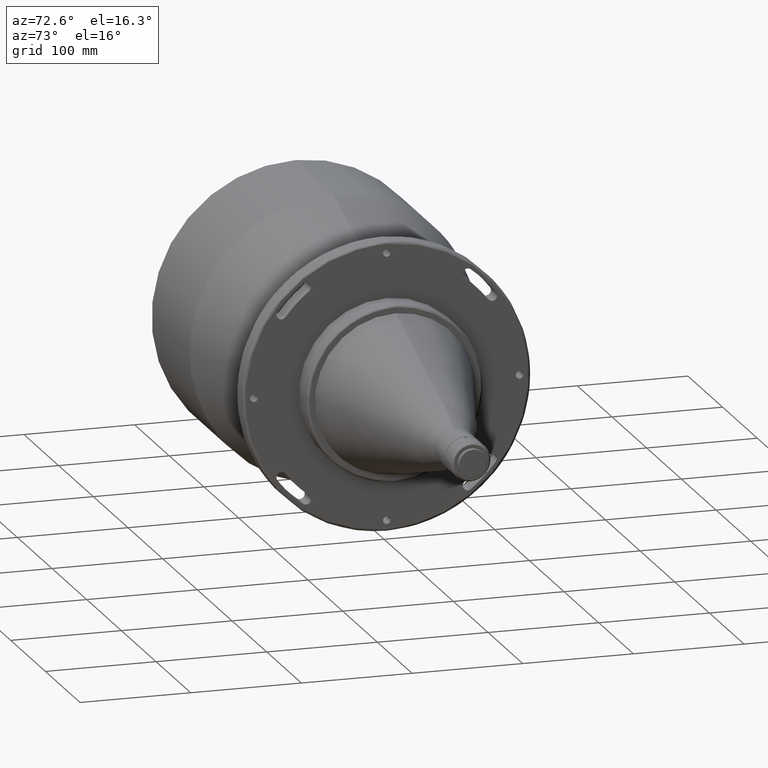
[diagram: clean part render]
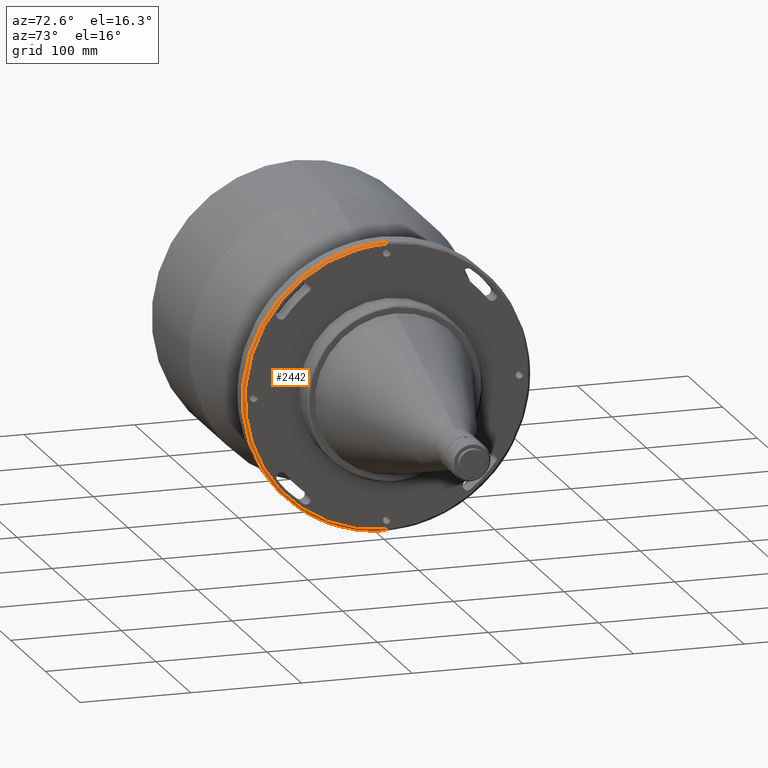
[diagram: same view with one face highlighted and labeled with its STEP entity id]
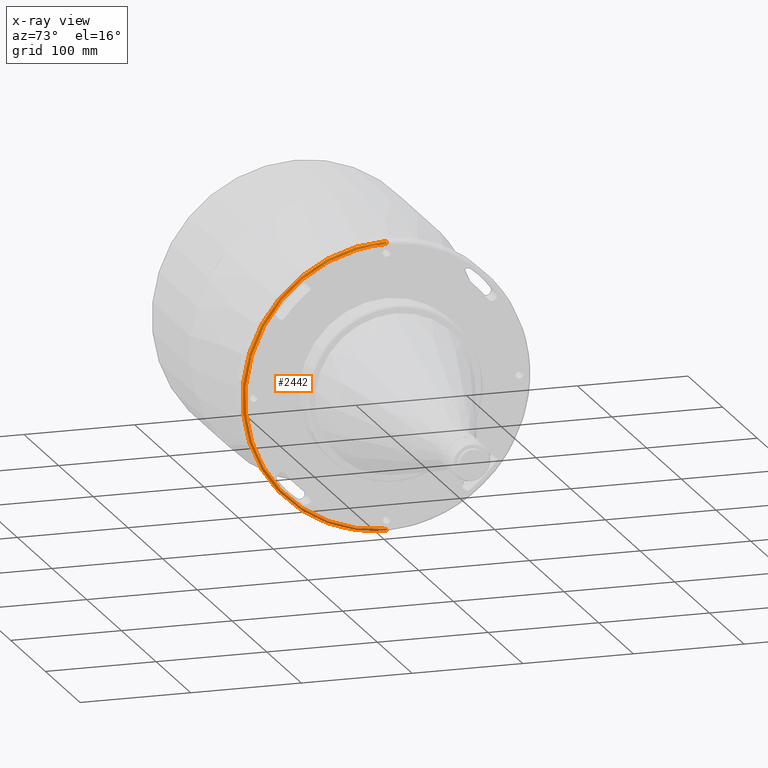
[diagram: x-ray of the same camera — body ghosted, the highlighted face saturated]
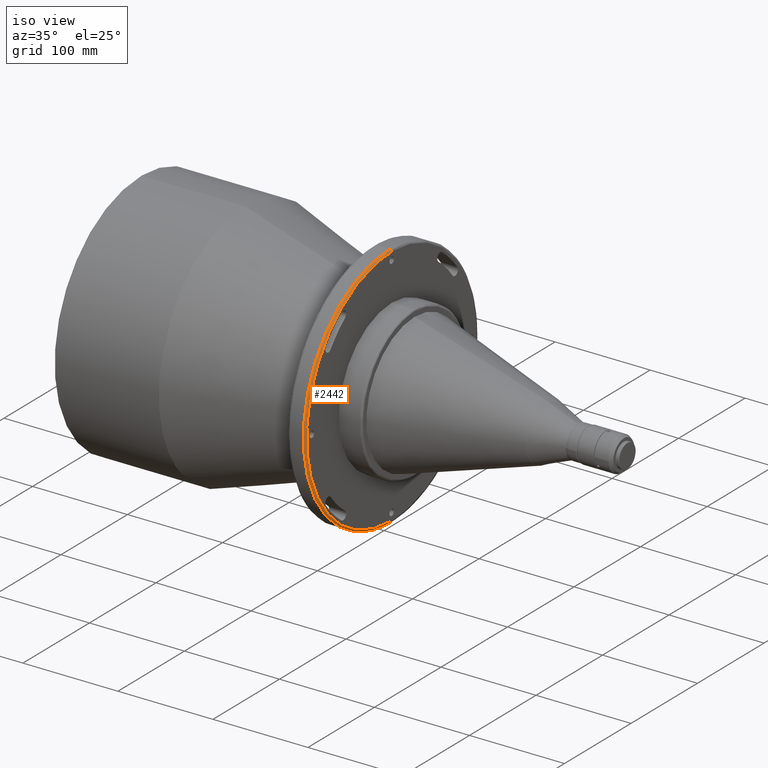
[diagram: same view with one face highlighted and labeled with its STEP entity id]
A machine part, auxiliary view. The second image highlights one B-rep face of the part: STEP entity #2442.
The next image is the same camera in x-ray: the body ghosted, the highlighted face saturated — about 0% of this face is hidden behind the body in this view.
A second angle (iso view) of the same face is appended — the face is thin or edge-on in the first view.
In plain terms, the highlighted face is a freeform B-spline surface patch.
Its self-contained STEP definition (entity closure, byte-faithful):
#2 = VERTEX_POINT ( 'NONE', #2156 ) ;
#80 =( BOUNDED_SURFACE ( )  B_SPLINE_SURFACE ( 3, 3, ( 
 ( #1030, #542, #815, #2557 ),
 ( #2259, #3067, #1330, #1297 ),
 ( #2048, #1284, #552, #563 ),
 ( #3053, #3043, #2029, #2823 ) ),
 .UNSPECIFIED., .F., .F., .T. ) 
 B_SPLINE_SURFACE_WITH_KNOTS ( ( 4, 4 ),
 ( 4, 4 ),
 ( 0.0000000000000000000, 1.000000000000000000 ),
 ( 0.0000000000000000000, 1.000000000000000000 ),
 .UNSPECIFIED. ) 
 GEOMETRIC_REPRESENTATION_ITEM ( )  RATIONAL_B_SPLINE_SURFACE ( (
 ( 1.000000000000000000, 0.3333333333333330400, 0.3333333333333330400, 1.000000000000000000),
 ( 0.7553208711179740800, 0.2517736237059909900, 0.2517736237059909900, 0.7553208711179740800),
 ( 0.7553208711179740800, 0.2517736237059909900, 0.2517736237059909900, 0.7553208711179740800),
 ( 1.000000000000000000, 0.3333333333333330400, 0.3333333333333330400, 1.000000000000000000) ) ) 
 REPRESENTATION_ITEM ( '' )  SURFACE ( )  );
#149 = CARTESIAN_POINT ( 'NONE',  ( 6.099999999999994300, 0.0000000000000000000, 0.0000000000000000000 ) ) ;
#235 = CARTESIAN_POINT ( 'NONE',  ( 6.100000000279341500, -1.167317169573529600E-008, 130.0000000000796400 ) ) ;
#307 = CARTESIAN_POINT ( 'NONE',  ( 6.100000000279341500, -3.999516856048957800E-008, -130.0000000000796400 ) ) ;
#317 = EDGE_CURVE ( 'NONE', #1290, #1848, #2966, .T. ) ;
#436 = EDGE_CURVE ( 'NONE', #1848, #2, #2159, .T. ) ;
#517 =( BOUNDED_CURVE ( )  B_SPLINE_CURVE ( 3, ( #1816, #2595, #843, #2065 ),
 .UNSPECIFIED., .F., .F. ) 
 B_SPLINE_CURVE_WITH_KNOTS ( ( 4, 4 ),
 ( 0.06314145699999929000, 0.9368585429999943800 ),
 .UNSPECIFIED. ) 
 CURVE ( )  GEOMETRIC_REPRESENTATION_ITEM ( )  RATIONAL_B_SPLINE_CURVE ( ( 0.9565783021659939300, 0.7697947703959774300, 0.7697947703959761000, 0.9565783021659899400 ) ) 
 REPRESENTATION_ITEM ( '' )  );
#542 = CARTESIAN_POINT ( 'NONE',  ( 5.900333167000000300, -259.9800166609998700, -129.9900083310000100 ) ) ;
#552 = CARTESIAN_POINT ( 'NONE',  ( 8.226440844999999100, -258.3202150609998900, 129.1601075300000000 ) ) ;
#563 = CARTESIAN_POINT ( 'NONE',  ( 8.226440844999999100, 0.0000000000000000000, 129.1601075300000000 ) ) ;
#650 = ORIENTED_EDGE ( 'NONE', *, *, #1591, .T. ) ;
#815 = CARTESIAN_POINT ( 'NONE',  ( 5.900333167000000300, -259.9800166609998700, 129.9900083310000100 ) ) ;
#843 = CARTESIAN_POINT ( 'NONE',  ( 8.099999999074453800, 0.0000000000000000000, -129.1715728749337000 ) ) ;
#851 = ORIENTED_EDGE ( 'NONE', *, *, #317, .T. ) ;
#988 = ORIENTED_EDGE ( 'NONE', *, *, #436, .T. ) ;
#1030 = CARTESIAN_POINT ( 'NONE',  ( 5.900333167000000300, 0.0000000000000000000, -129.9900083310000100 ) ) ;
#1080 = CARTESIAN_POINT ( 'NONE',  ( 8.100000000191093000, 0.0000000000000000000, -127.9999999753477500 ) ) ;
#1123 = CARTESIAN_POINT ( 'NONE',  ( 7.271572874933713800, 0.0000000000000000000, 129.9999999990745000 ) ) ;
#1135 = DIRECTION ( 'NONE',  ( 4.003208021484939400E-017, 0.0000000000000000000, 1.000000000000000000 ) ) ;
#1178 = CARTESIAN_POINT ( 'NONE',  ( 8.100000000191093000, 0.0000000000000000000, 127.9999999753477200 ) ) ;
#1284 = CARTESIAN_POINT ( 'NONE',  ( 8.226440844999999100, -258.3202150609998900, -129.1601075300000000 ) ) ;
#1290 = VERTEX_POINT ( 'NONE', #1667 ) ;
#1297 = CARTESIAN_POINT ( 'NONE',  ( 7.260107529999999100, 0.0000000000000000000, 130.1264408450000500 ) ) ;
#1330 = CARTESIAN_POINT ( 'NONE',  ( 7.260107530000000000, -260.2528816910000800, 130.1264408450000200 ) ) ;
#1353 = EDGE_LOOP ( 'NONE', ( #988, #1384, #650, #851 ) ) ;
#1384 = ORIENTED_EDGE ( 'NONE', *, *, #2083, .T. ) ;
#1591 = EDGE_CURVE ( 'NONE', #2470, #1290, #517, .T. ) ;
#1667 = CARTESIAN_POINT ( 'NONE',  ( 8.100000000191093000, 0.0000000000000000000, -127.9999999753477500 ) ) ;
#1790 = FACE_OUTER_BOUND ( 'NONE', #1353, .T. ) ;
#1816 = CARTESIAN_POINT ( 'NONE',  ( 6.100000000279341500, -3.999516856048957800E-008, -130.0000000000796400 ) ) ;
#1831 = CARTESIAN_POINT ( 'NONE',  ( 8.100000000318489800, -256.0000000018774200, -128.0000000012986200 ) ) ;
#1848 = VERTEX_POINT ( 'NONE', #2049 ) ;
#1899 = DIRECTION ( 'NONE',  ( 1.000000000000000000, -0.0000000000000000000, -0.0000000000000000000 ) ) ;
#2029 = CARTESIAN_POINT ( 'NONE',  ( 8.090008331000001700, -255.6006663329999600, 127.8003331670000100 ) ) ;
#2048 = CARTESIAN_POINT ( 'NONE',  ( 8.226440844999999100, 0.0000000000000000000, -129.1601075300000000 ) ) ;
#2049 = CARTESIAN_POINT ( 'NONE',  ( 8.100000000191093000, 0.0000000000000000000, 127.9999999753477200 ) ) ;
#2065 = CARTESIAN_POINT ( 'NONE',  ( 8.100000000191093000, 0.0000000000000000000, -127.9999999753477500 ) ) ;
#2083 = EDGE_CURVE ( 'NONE', #2, #2470, #2751, .T. ) ;
#2087 = AXIS2_PLACEMENT_3D ( 'NONE', #149, #1899, #1135 ) ;
#2156 = CARTESIAN_POINT ( 'NONE',  ( 6.100000000279341500, -1.167317169573529500E-008, 130.0000000000796400 ) ) ;
#2159 =( BOUNDED_CURVE ( )  B_SPLINE_CURVE ( 3, ( #1178, #2374, #1123, #235 ),
 .UNSPECIFIED., .F., .F. ) 
 B_SPLINE_CURVE_WITH_KNOTS ( ( 4, 4 ),
 ( 0.06314145699996727400, 0.9368585430000013800 ),
 .UNSPECIFIED. ) 
 CURVE ( )  GEOMETRIC_REPRESENTATION_ITEM ( )  RATIONAL_B_SPLINE_CURVE ( ( 0.9565783021660142500, 0.7697947703959758800, 0.7697947703959693300, 0.9565783021659942700 ) ) 
 REPRESENTATION_ITEM ( '' )  );
#2259 = CARTESIAN_POINT ( 'NONE',  ( 7.260107529999999100, 0.0000000000000000000, -130.1264408450000500 ) ) ;
#2325 = CARTESIAN_POINT ( 'NONE',  ( 8.100000000318489800, -256.0000000018774200, 128.0000000012986200 ) ) ;
#2374 = CARTESIAN_POINT ( 'NONE',  ( 8.099999999074524800, 0.0000000000000000000, 129.1715728749336200 ) ) ;
#2442 = ADVANCED_FACE ( 'NONE', ( #1790 ), #80, .T. ) ;
#2470 = VERTEX_POINT ( 'NONE', #307 ) ;
#2557 = CARTESIAN_POINT ( 'NONE',  ( 5.900333167000000300, 0.0000000000000000000, 129.9900083310000100 ) ) ;
#2595 = CARTESIAN_POINT ( 'NONE',  ( 7.271572874933651700, 0.0000000000000000000, -129.9999999990745000 ) ) ;
#2751 = CIRCLE ( 'NONE', #2087, 130.0000000000000000 ) ;
#2823 = CARTESIAN_POINT ( 'NONE',  ( 8.090008331000001700, 0.0000000000000000000, 127.8003331669999900 ) ) ;
#2966 =( BOUNDED_CURVE ( )  B_SPLINE_CURVE ( 3, ( #1080, #1831, #2325, #3103 ),
 .UNSPECIFIED., .F., .F. ) 
 B_SPLINE_CURVE_WITH_KNOTS ( ( 4, 4 ),
 ( 0.0000000000000000000, 1.000000000000000000 ),
 .UNSPECIFIED. ) 
 CURVE ( )  GEOMETRIC_REPRESENTATION_ITEM ( )  RATIONAL_B_SPLINE_CURVE ( ( 0.9565783021300911000, 0.3188594340433633700, 0.3188594340433633700, 0.9565783021300911000 ) ) 
 REPRESENTATION_ITEM ( '' )  );
#3043 = CARTESIAN_POINT ( 'NONE',  ( 8.090008331000001700, -255.6006663329999600, -127.8003331670000100 ) ) ;
#3053 = CARTESIAN_POINT ( 'NONE',  ( 8.090008331000001700, 0.0000000000000000000, -127.8003331669999900 ) ) ;
#3067 = CARTESIAN_POINT ( 'NONE',  ( 7.260107530000000000, -260.2528816910000800, -130.1264408450000200 ) ) ;
#3103 = CARTESIAN_POINT ( 'NONE',  ( 8.100000000191093000, 0.0000000000000000000, 127.9999999753477200 ) ) ;